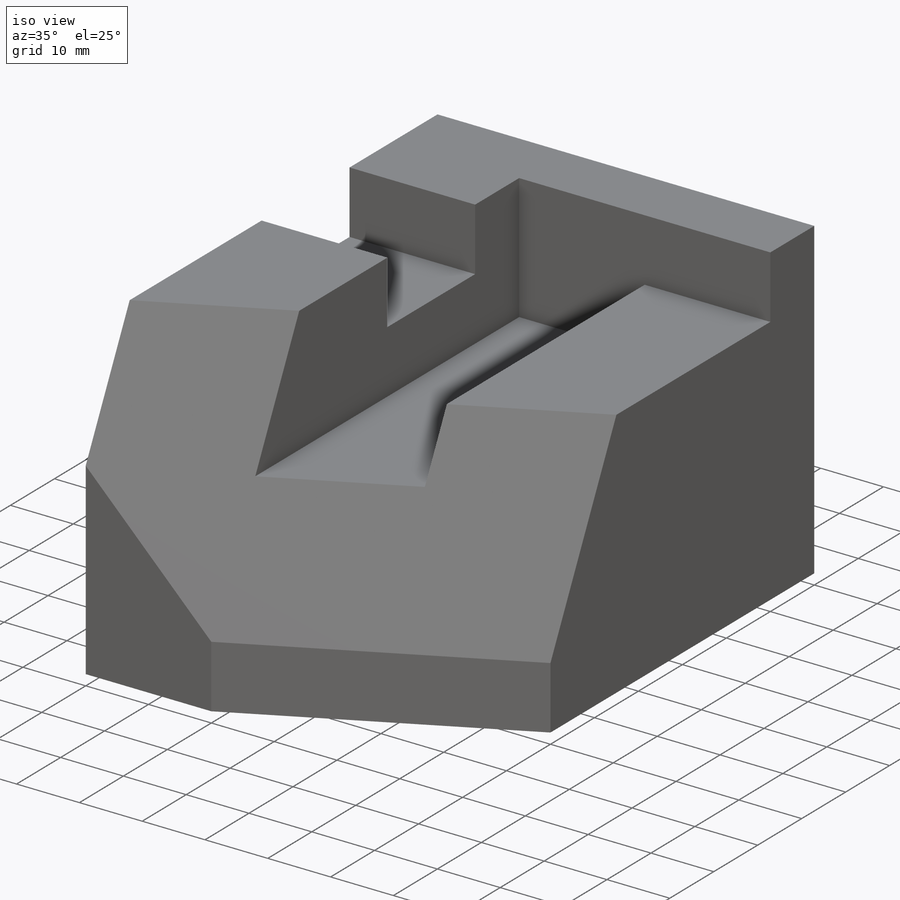
[diagram: iso view]
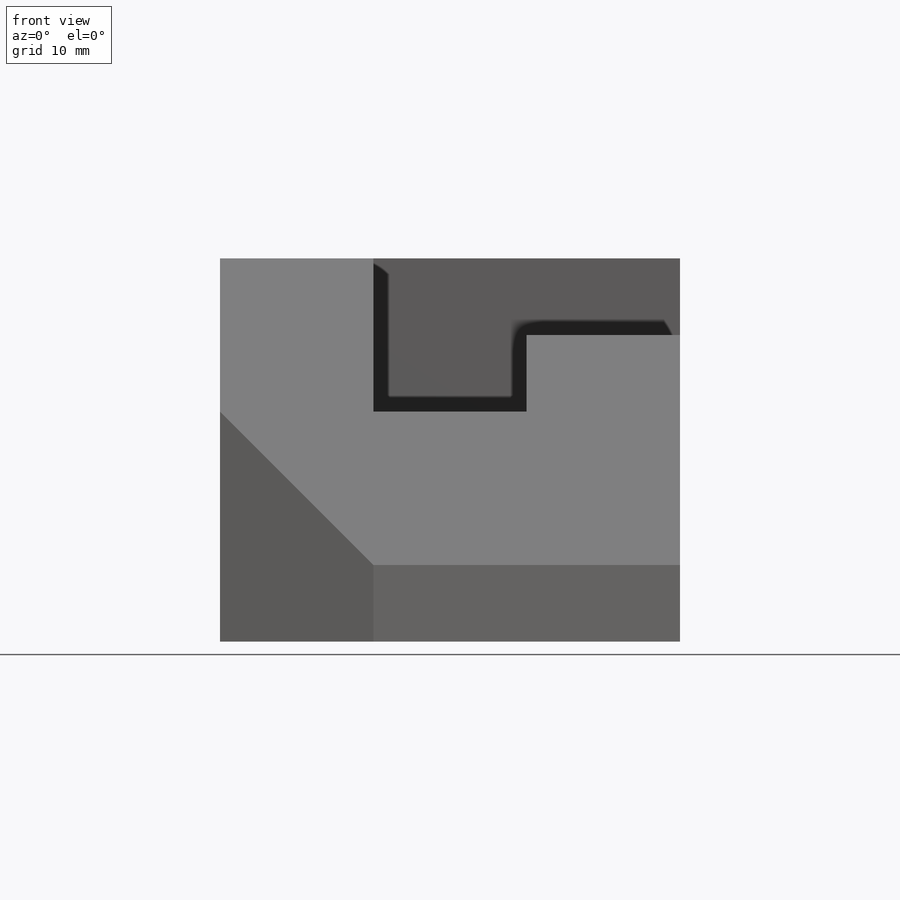
[diagram: front view]
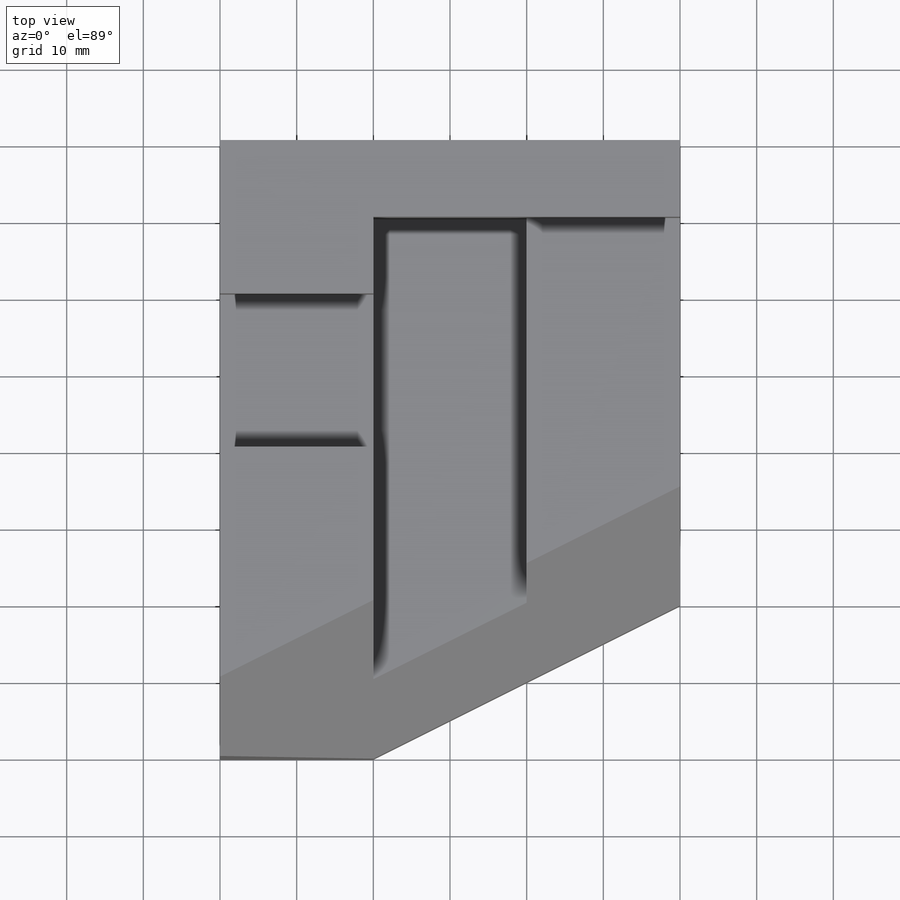
[diagram: top view]
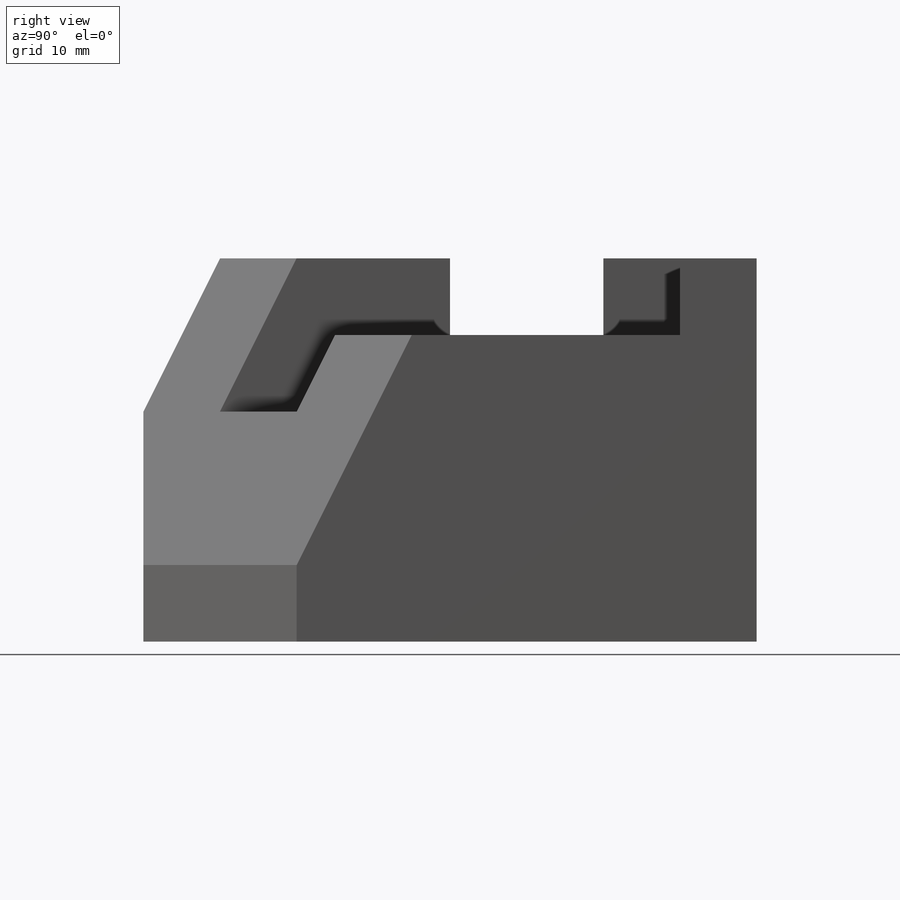
[diagram: right view]
SOLIDWORKS PART (.sldprt)
format: sldprt  version: not decoded by parser v0  size: 243,200 bytes
history: native  units: mm
features: sketch x10, cut_extrude x4, material x1, extrude x1 (+13 scaffold rows collapsed)
feature tree (29):
  scaffold x13  (default folders/planes/origin — collapsed)
  material  "Material <not specified>"
  sketch  "Sketch1"  dims[D1=60.0mm D2=80.0mm]
  extrude  "Boss-Extrude1"  Depth=50mm
  sketch  "Sketch2"  dims[D1=10.0mm D2=20.0mm D3=10.0mm D4=20.0mm D5=20.0mm]
  cut_extrude  "Cut-Extrude1"  Depth=70mm
  sketch  "Sketch3"  dims[c1.D1=10.0mm c1.D2=35.0mm c2.D1=10.0mm c2.D3=~13.282805mm c3.D1=10.0mm c3.D3=60.0mm]
  sketch  "Sketch4"  dims[c1.D1=10.0mm c1.D2=~13.776355mm c2.D2=90.0deg c3.D2=20.0mm c3.D3=30.0mm]
  sketch  "Sketch5"  dims[D1=70.0mm D2=60.0mm]
  sketch  "Sketch6"  dims[D1=60.0mm]
  sketch  "Sketch7"  dims[D1=10.0mm D2=20.0mm D3=20.0mm]
  cut_extrude  "Cut-Extrude6"  Depth=70mm
  sketch  "Sketch8"  dims[D1=40.0mm D2=20.0mm]
  cut_extrude  "Cut-Extrude7"  Depth=70mm
  sketch  "Sketch9"  dims[D1=45.0mm]
  sketch  "3DSketch6"  dims[D1=50.0mm]
  cut_extrude  "Cut-Extrude8"  Depth=70mm
decode coverage: 15 of 15 modeling features carry decoded parameters
note: ~ marks probable driven/reference dimensions
note: suppression state not decoded; provenance and decode notes live in map.json
